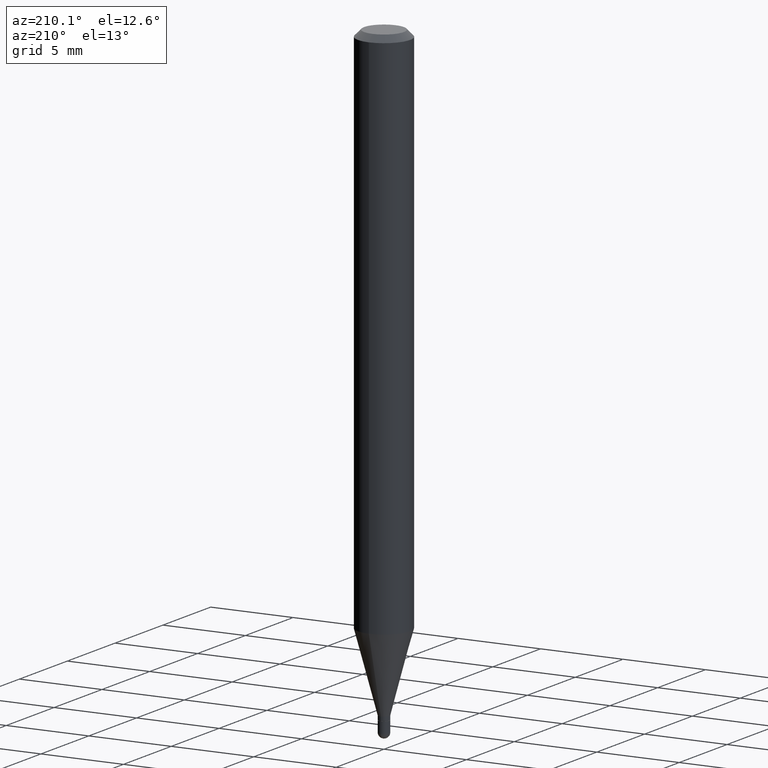
[diagram: clean part render]
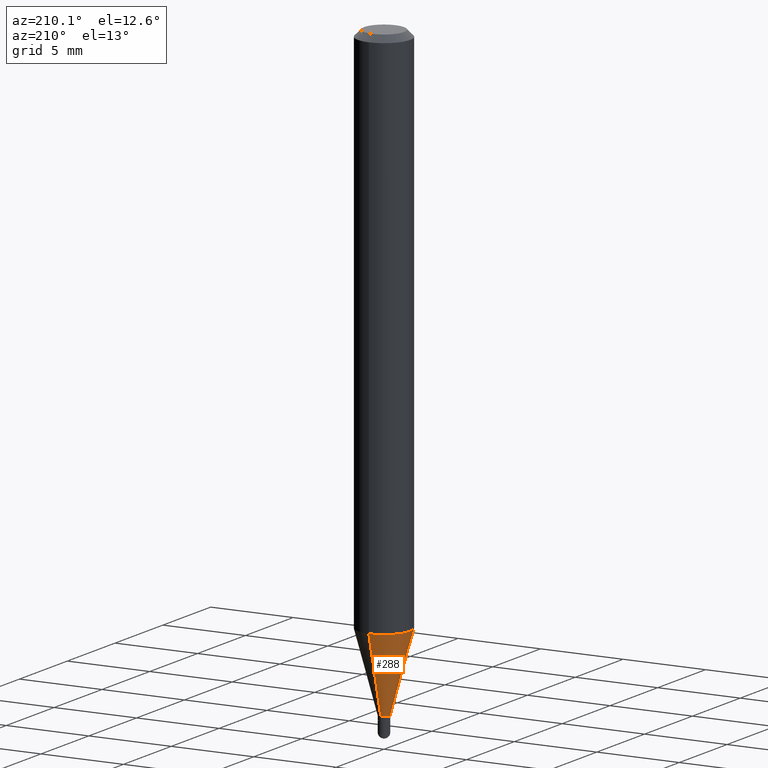
[diagram: same view with one face highlighted and labeled with its STEP entity id]
A machine part, auxiliary view. The second image highlights one B-rep face of the part: STEP entity #288.
In plain terms, the highlighted conical surface has half-angle 15 deg.
Its self-contained STEP definition (entity closure, byte-faithful):
#20 = LINE ( 'NONE', #301, #418 ) ;
#24 = VERTEX_POINT ( 'NONE', #423 ) ;
#29 = DIRECTION ( 'NONE',  ( 1.839019923739598738E-15, 0.2588190451025247363, 0.9659258262890673130 ) ) ;
#30 = EDGE_CURVE ( 'NONE', #254, #24, #189, .T. ) ;
#31 = CIRCLE ( 'NONE', #202, 0.01299999999999992134 ) ;
#46 = DIRECTION ( 'NONE',  ( -2.445480460082520915E-29, 3.491464649798792437E-15, 1.000000000000000000 ) ) ;
#47 = CONICAL_SURFACE ( 'NONE', #167, 0.01299999999999992134, 0.2617993877991500740 ) ;
#55 = VERTEX_POINT ( 'NONE', #224 ) ;
#89 = EDGE_CURVE ( 'NONE', #254, #55, #31, .T. ) ;
#90 = DIRECTION ( 'NONE',  ( -2.445480460082520915E-29, 3.491464649798792437E-15, 1.000000000000000000 ) ) ;
#106 = EDGE_LOOP ( 'NONE', ( #268, #248, #138, #329 ) ) ;
#115 = CARTESIAN_POINT ( 'NONE',  ( 3.548392147579738179E-29, -5.066115206858047918E-15, -1.451000000000000068 ) ) ;
#138 = ORIENTED_EDGE ( 'NONE', *, *, #314, .T. ) ;
#139 = CARTESIAN_POINT ( 'NONE',  ( 3.548392147579738179E-29, -5.066115206858047918E-15, -1.451000000000000068 ) ) ;
#167 = AXIS2_PLACEMENT_3D ( 'NONE', #139, #90, #332 ) ;
#189 = LINE ( 'NONE', #385, #504 ) ;
#199 = CARTESIAN_POINT ( 'NONE',  ( 2.682298827494708454E-16, 0.01299999999999485421, -1.451000000000000068 ) ) ;
#202 = AXIS2_PLACEMENT_3D ( 'NONE', #115, #46, #435 ) ;
#218 = CIRCLE ( 'NONE', #309, 0.06250000000000000000 ) ;
#224 = CARTESIAN_POINT ( 'NONE',  ( -9.077851480988543552E-17, -0.01300000000000498847, -1.451000000000000068 ) ) ;
#244 = DIRECTION ( 'NONE',  ( -6.982962677686265922E-15, -1.000000000000000000, 4.370956789862821150E-15 ) ) ;
#248 = ORIENTED_EDGE ( 'NONE', *, *, #89, .T. ) ;
#254 = VERTEX_POINT ( 'NONE', #199 ) ;
#268 = ORIENTED_EDGE ( 'NONE', *, *, #30, .F. ) ;
#288 = ADVANCED_FACE ( 'NONE', ( #490 ), #47, .T. ) ;
#299 = VERTEX_POINT ( 'NONE', #370 ) ;
#301 = CARTESIAN_POINT ( 'NONE',  ( -9.077851480988543552E-17, -0.01300000000000498847, -1.451000000000000068 ) ) ;
#304 = EDGE_CURVE ( 'NONE', #24, #299, #218, .T. ) ;
#309 = AXIS2_PLACEMENT_3D ( 'NONE', #407, #375, #244 ) ;
#314 = EDGE_CURVE ( 'NONE', #55, #299, #20, .T. ) ;
#329 = ORIENTED_EDGE ( 'NONE', *, *, #304, .F. ) ;
#332 = DIRECTION ( 'NONE',  ( -6.982962677686266711E-15, -1.000000000000000000, 0.000000000000000000 ) ) ;
#370 = CARTESIAN_POINT ( 'NONE',  ( -4.364351673553606573E-16, -0.06250000000000442701, -1.266263485025340696 ) ) ;
#375 = DIRECTION ( 'NONE',  ( -2.445480460082520915E-29, 3.491464649798792437E-15, 1.000000000000000000 ) ) ;
#385 = CARTESIAN_POINT ( 'NONE',  ( 9.237055564884793934E-17, 0.01299999999999485421, -1.451000000000000068 ) ) ;
#407 = CARTESIAN_POINT ( 'NONE',  ( 3.096622609945466894E-29, -4.421114195297001203E-15, -1.266263485025340918 ) ) ;
#418 = VECTOR ( 'NONE', #450, 39.37007874015748854 ) ;
#423 = CARTESIAN_POINT ( 'NONE',  ( 4.440892098500932831E-16, 0.06249999999999556605, -1.266263485025341140 ) ) ;
#435 = DIRECTION ( 'NONE',  ( -6.982962677686266711E-15, -1.000000000000000000, 0.000000000000000000 ) ) ;
#450 = DIRECTION ( 'NONE',  ( -1.807323732225328562E-15, -0.2588190451025179639, 0.9659258262890690894 ) ) ;
#490 = FACE_OUTER_BOUND ( 'NONE', #106, .T. ) ;
#504 = VECTOR ( 'NONE', #29, 39.37007874015748854 ) ;